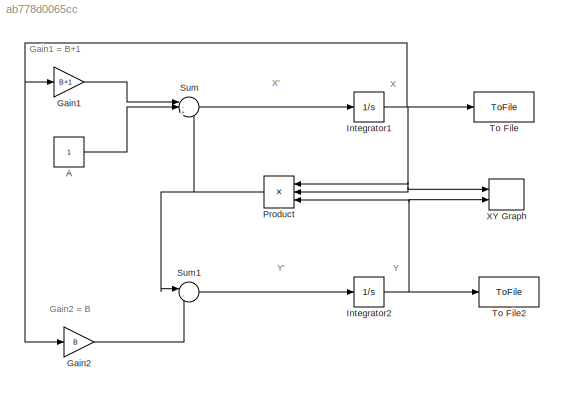
MODEL slx_ab778d0065cc
KIND model
CONFIG AbsTol = auto
CONFIG EnableMultiTasking = on
CONFIG FixedStep = auto
CONFIG MaxStep = auto
CONFIG MinStep = auto
CONFIG RelTol = 1e-3
CONFIG SampleTimeConstraint = Unconstrained
CONFIG SolverName = ode45
CONFIG StartTime = 0.0
CONFIG StopTime = 30
WORKSPACE source: mxarray member
WORKSPACE X0 = 0
BLOCK [Constant] A
BLOCK [Gain] Gain1
  Gain = B+1
BLOCK [Gain] Gain2
  Gain = B
BLOCK [Integrator] Integrator1
  InitialCondition = 2
  Ports = [1, 1]
BLOCK [Integrator] Integrator2
  InitialCondition = 3
  Ports = [1, 1]
BLOCK [Product] Product
  Inputs = 3
  NameLocation = top
  Ports = [3, 1]
BLOCK [Sum] Sum
  Inputs = |-++
  Ports = [3, 1]
BLOCK [Sum] Sum1
  Inputs = |-+
  Ports = [2, 1]
BLOCK [ToFile] To File
  Filename = X.mat
  MatrixName = X
  Ports = [1]
  SampleTime = 0.001
BLOCK [ToFile] To File2
  Filename = Y.mat
  MatrixName = Y
  Ports = [1]
  SampleTime = 0.001
BLOCK [Record] XY Graph
  CompatibilityTag = XY
  FileSettingsInternal = {"entries":[{"content":{"excelSettings":{"content":{},"type":"Streamout.ExcelSettings"}},"type":"Streamout.FileSettingStorage","uuid":"c2565e3c-df81-4bf1-9553-0a324edf4095"}],"packageUris":["http://schema.mathworks.com/mf0/streamout_blocks/R2020a"],"version":"1.0"}
  Layout = [1 1]
  Ports = [2]
  SignalsInternal = {"entries":[{"content":{"signals":[{"content":{"blockPath":["fig2_18_simulink/XY Graph"],"channel":[],"dimensions":[1],"domain":"fig2_18_simulink/XY Graph","lineColor":"#a2142f","plots":[],"port":1,"sid":[""],"signalID":1080,"signalName":"Integrator1"},"type":"RecordBlkView.Signal","uuid":"8f16423f-890a-4f7d-94a4-8240eb80c208"},{"content":{"blockPath":["fig2_18_simulink/XY Graph"],"channel":[],"di...<+401ch>
  VisualizationBindings = {"xyplotplugin":{"info":[{"series":[],"subplotID":1}]}}
ANNOTATION (root): Gain1 = B+1
ANNOTATION (root): Gain2 = B
ANNOTATION (root): X
ANNOTATION (root): X'
ANNOTATION (root): Y
ANNOTATION (root): Y'
LINE A:1 -> Sum:2
LINE Gain1:1 -> Sum:1
LINE Gain2:1 -> Sum1:2
NET Integrator1:1 -> Gain1:1, Gain2:1, Product:1, Product:2, To File:1, XY Graph:1
NET Integrator2:1 -> Product:3, To File2:1, XY Graph:2
NET Product:1 -> Sum1:1, Sum:3
LINE Sum1:1 -> Integrator2:1
LINE Sum:1 -> Integrator1:1
note: NET lines group one-source signal fan-out (src -> all destinations, sorted); 1:1 wires keep LINE
